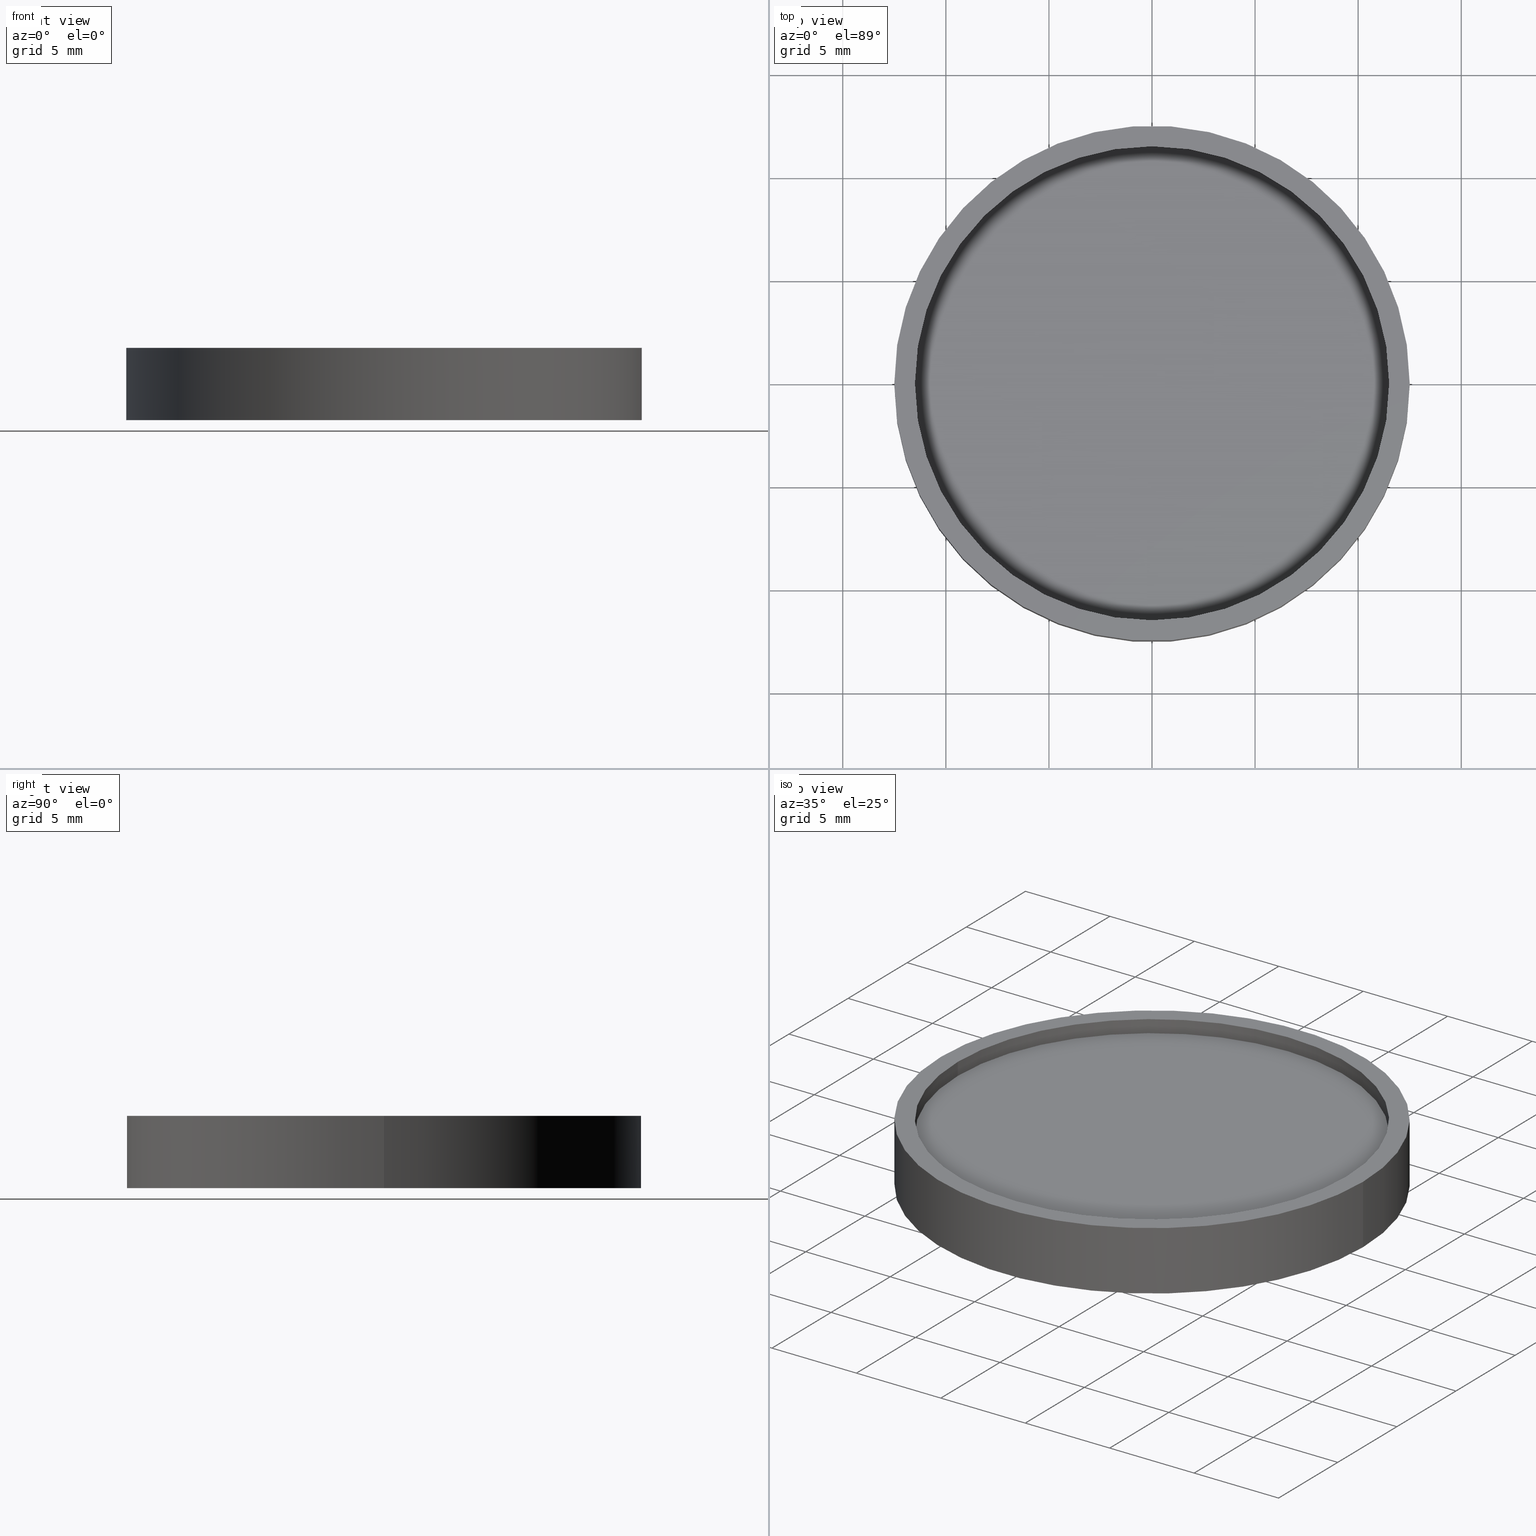
[diagram: canonical four-view strip — front | top / right | iso, engineering-drawing reading convention]
A machine part, canonical four-view strip (front | top / right | iso — engineering-drawing reading convention). The complete STEP part file that produces these views, byte-faithful:
ISO-10303-21;
HEADER;
FILE_DESCRIPTION (( 'STEP AP214' ),
    '1' );
FILE_NAME ('GNIF-045-460-D25.STEP',
    '2024-08-13T06:41:22',
    ( 'Windows User' ),
    ( 'P R C' ),
    'SwSTEP 2.0',
    'SolidWorks 2022',
    '' );
FILE_SCHEMA (( 'AUTOMOTIVE_DESIGN' ));
ENDSEC;

DATA;
#1 = CONICAL_SURFACE ( 'NONE', #335, 11.50000000000000000, 0.7853981633974471688 ) ;
#2 = FILL_AREA_STYLE ('',( #329 ) ) ;
#3 = DIRECTION ( 'NONE',  ( 1.000000000000000000, 0.000000000000000000, 0.000000000000000000 ) ) ;
#4 = AXIS2_PLACEMENT_3D ( 'NONE', #110, #103, #242 ) ;
#5 = DIRECTION ( 'NONE',  ( -1.000000000000000000, 0.000000000000000000, 0.000000000000000000 ) ) ;
#6 = STYLED_ITEM ( 'NONE', ( #398 ), #101 ) ;
#7 = DIRECTION ( 'NONE',  ( -0.7071067811865467956, 0.000000000000000000, -0.7071067811865483499 ) ) ;
#8 = CARTESIAN_POINT ( 'NONE',  ( 0.000000000000000000, 0.000000000000000000, 3.500000000000000000 ) ) ;
#9 = MECHANICAL_DESIGN_GEOMETRIC_PRESENTATION_REPRESENTATION (  '', ( #240 ), #364 ) ;
#10 = SURFACE_STYLE_FILL_AREA ( #80 ) ;
#11 = DIRECTION ( 'NONE',  ( 0.000000000000000000, 0.000000000000000000, 1.000000000000000000 ) ) ;
#12 = UNCERTAINTY_MEASURE_WITH_UNIT (LENGTH_MEASURE( 1.000000000000000082E-05 ), #216, 'distance_accuracy_value', 'NONE');
#13 =( NAMED_UNIT ( * ) PLANE_ANGLE_UNIT ( ) SI_UNIT ( $, .RADIAN. ) );
#14 = AXIS2_PLACEMENT_3D ( 'NONE', #336, #81, #271 ) ;
#15 = DIRECTION ( 'NONE',  ( 0.000000000000000000, 0.000000000000000000, -1.000000000000000000 ) ) ;
#16 =( LENGTH_UNIT ( ) NAMED_UNIT ( * ) SI_UNIT ( .MILLI., .METRE. ) );
#17 = ORIENTED_EDGE ( 'NONE', *, *, #130, .T. ) ;
#18 = PRESENTATION_STYLE_ASSIGNMENT (( #408 ) ) ;
#19 =( GEOMETRIC_REPRESENTATION_CONTEXT ( 3 ) GLOBAL_UNCERTAINTY_ASSIGNED_CONTEXT ( ( #140 ) ) GLOBAL_UNIT_ASSIGNED_CONTEXT ( ( #16, #184, #241 ) ) REPRESENTATION_CONTEXT ( 'NONE', 'WORKASPACE' ) );
#20 = FILL_AREA_STYLE_COLOUR ( '', #128 ) ;
#21 = VERTEX_POINT ( 'NONE', #152 ) ;
#22 = CARTESIAN_POINT ( 'NONE',  ( 0.000000000000000000, 0.000000000000000000, 0.000000000000000000 ) ) ;
#23 = ADVANCED_FACE ( 'NONE', ( #373 ), #158, .T. ) ;
#24 = DIRECTION ( 'NONE',  ( 0.000000000000000000, 0.000000000000000000, 1.000000000000000000 ) ) ;
#25 = ORIENTED_EDGE ( 'NONE', *, *, #32, .F. ) ;
#26 =( NAMED_UNIT ( * ) SI_UNIT ( $, .STERADIAN. ) SOLID_ANGLE_UNIT ( ) );
#27 = SURFACE_SIDE_STYLE ('',( #236 ) ) ;
#28 = ORIENTED_EDGE ( 'NONE', *, *, #362, .T. ) ;
#29 = COLOUR_RGB ( '',0.2235294117647058654, 0.2235294117647058654, 0.2235294117647058654 ) ;
#30 = DIRECTION ( 'NONE',  ( 1.000000000000000000, 0.000000000000000000, 0.000000000000000000 ) ) ;
#31 = SURFACE_SIDE_STYLE ('',( #59 ) ) ;
#32 = EDGE_CURVE ( 'NONE', #252, #227, #368, .T. ) ;
#33 = PRODUCT_DEFINITION_FORMATION_WITH_SPECIFIED_SOURCE ( '�κ�', '', #346, .NOT_KNOWN. ) ;
#34 =( NAMED_UNIT ( * ) PLANE_ANGLE_UNIT ( ) SI_UNIT ( $, .RADIAN. ) );
#35 = COLOUR_RGB ( '',0.2235294117647058654, 0.2235294117647058654, 0.2235294117647058654 ) ;
#36 = CIRCLE ( 'NONE', #383, 11.50000000000000000 ) ;
#37 = CARTESIAN_POINT ( 'NONE',  ( -12.50000000000000000, 0.000000000000000000, 3.500000000000000000 ) ) ;
#38 = FACE_BOUND ( 'NONE', #154, .T. ) ;
#39 =( NAMED_UNIT ( * ) PLANE_ANGLE_UNIT ( ) SI_UNIT ( $, .RADIAN. ) );
#40 = PLANE ( 'NONE',  #414 ) ;
#41 = FACE_OUTER_BOUND ( 'NONE', #384, .T. ) ;
#42 = EDGE_LOOP ( 'NONE', ( #95, #411, #282, #221 ) ) ;
#43 = CARTESIAN_POINT ( 'NONE',  ( 11.50000000000000000, 1.408343819019456176E-15, 0.7500000000000093259 ) ) ;
#44 = UNCERTAINTY_MEASURE_WITH_UNIT (LENGTH_MEASURE( 1.000000000000000082E-05 ), #410, 'distance_accuracy_value', 'NONE');
#45 = VECTOR ( 'NONE', #7, 1000.000000000000000 ) ;
#46 =( LENGTH_UNIT ( ) NAMED_UNIT ( * ) SI_UNIT ( .MILLI., .METRE. ) );
#47 = FACE_OUTER_BOUND ( 'NONE', #42, .T. ) ;
#48 = FILL_AREA_STYLE ('',( #276 ) ) ;
#49 =( GEOMETRIC_REPRESENTATION_CONTEXT ( 3 ) GLOBAL_UNCERTAINTY_ASSIGNED_CONTEXT ( ( #44 ) ) GLOBAL_UNIT_ASSIGNED_CONTEXT ( ( #410, #235, #344 ) ) REPRESENTATION_CONTEXT ( 'NONE', 'WORKASPACE' ) );
#50 = STYLED_ITEM ( 'NONE', ( #18 ), #219 ) ;
#51 =( NAMED_UNIT ( * ) PLANE_ANGLE_UNIT ( ) SI_UNIT ( $, .RADIAN. ) );
#52 = DIRECTION ( 'NONE',  ( -0.000000000000000000, -0.000000000000000000, -1.000000000000000000 ) ) ;
#53 = DIRECTION ( 'NONE',  ( 0.000000000000000000, 0.000000000000000000, 1.000000000000000000 ) ) ;
#54 = PRESENTATION_LAYER_ASSIGNMENT (  '', '', ( #400 ) ) ;
#55 = VECTOR ( 'NONE', #316, 1000.000000000000000 ) ;
#56 = ORIENTED_EDGE ( 'NONE', *, *, #32, .T. ) ;
#57 = CARTESIAN_POINT ( 'NONE',  ( 12.50000000000000000, 1.530808498934191521E-15, 0.000000000000000000 ) ) ;
#58 = ORIENTED_EDGE ( 'NONE', *, *, #362, .F. ) ;
#59 = SURFACE_STYLE_FILL_AREA ( #284 ) ;
#60 = ORIENTED_EDGE ( 'NONE', *, *, #62, .T. ) ;
#61 = DIRECTION ( 'NONE',  ( 0.000000000000000000, 0.000000000000000000, 1.000000000000000000 ) ) ;
#62 = EDGE_CURVE ( 'NONE', #227, #225, #193, .T. ) ;
#63 = AXIS2_PLACEMENT_3D ( 'NONE', #245, #11, #270 ) ;
#64 = STYLED_ITEM ( 'NONE', ( #239 ), #256 ) ;
#65 = CARTESIAN_POINT ( 'NONE',  ( -12.50000000000000000, 0.000000000000000000, 0.000000000000000000 ) ) ;
#66 =( NAMED_UNIT ( * ) PLANE_ANGLE_UNIT ( ) SI_UNIT ( $, .RADIAN. ) );
#67 = EDGE_CURVE ( 'NONE', #165, #225, #250, .T. ) ;
#68 = AXIS2_PLACEMENT_3D ( 'NONE', #406, #300, #210 ) ;
#69 = DIRECTION ( 'NONE',  ( -0.000000000000000000, -0.000000000000000000, 1.000000000000000000 ) ) ;
#70 = COLOUR_RGB ( '',0.2235294117647058654, 0.2235294117647058654, 0.2235294117647058654 ) ;
#71 = DIRECTION ( 'NONE',  ( -0.000000000000000000, -0.000000000000000000, -1.000000000000000000 ) ) ;
#72 = EDGE_CURVE ( 'NONE', #225, #165, #174, .T. ) ;
#73 = CIRCLE ( 'NONE', #387, 11.50000000000000000 ) ;
#74 = DIRECTION ( 'NONE',  ( 1.000000000000000000, 0.000000000000000000, 0.000000000000000000 ) ) ;
#75 = MECHANICAL_DESIGN_GEOMETRIC_PRESENTATION_REPRESENTATION (  '', ( #400 ), #91 ) ;
#76 = COLOUR_RGB ( '',0.2235294117647058654, 0.2235294117647058654, 0.2235294117647058654 ) ;
#77 = CARTESIAN_POINT ( 'NONE',  ( 0.000000000000000000, 0.000000000000000000, 0.7500000000000000000 ) ) ;
#78 = CARTESIAN_POINT ( 'NONE',  ( 0.000000000000000000, 0.000000000000000000, 0.000000000000000000 ) ) ;
#79 = CARTESIAN_POINT ( 'NONE',  ( 12.50000000000000000, 1.530808498934191521E-15, 3.500000000000000000 ) ) ;
#80 = FILL_AREA_STYLE ('',( #340 ) ) ;
#81 = DIRECTION ( 'NONE',  ( 0.000000000000000000, 0.000000000000000000, 1.000000000000000000 ) ) ;
#82 = COLOUR_RGB ( '',1.000000000000000000, 1.000000000000000000, 1.000000000000000000 ) ;
#83 =( GEOMETRIC_REPRESENTATION_CONTEXT ( 3 ) GLOBAL_UNCERTAINTY_ASSIGNED_CONTEXT ( ( #104 ) ) GLOBAL_UNIT_ASSIGNED_CONTEXT ( ( #197, #88, #226 ) ) REPRESENTATION_CONTEXT ( 'NONE', 'WORKASPACE' ) );
#84 = SURFACE_STYLE_USAGE ( .BOTH. , #246 ) ;
#85 = ORIENTED_EDGE ( 'NONE', *, *, #399, .T. ) ;
#86 = SURFACE_SIDE_STYLE ('',( #111 ) ) ;
#87 = ORIENTED_EDGE ( 'NONE', *, *, #347, .T. ) ;
#88 =( NAMED_UNIT ( * ) PLANE_ANGLE_UNIT ( ) SI_UNIT ( $, .RADIAN. ) );
#89 = VERTEX_POINT ( 'NONE', #151 ) ;
#90 = SURFACE_STYLE_USAGE ( .BOTH. , #31 ) ;
#91 =( GEOMETRIC_REPRESENTATION_CONTEXT ( 3 ) GLOBAL_UNCERTAINTY_ASSIGNED_CONTEXT ( ( #338 ) ) GLOBAL_UNIT_ASSIGNED_CONTEXT ( ( #46, #39, #306 ) ) REPRESENTATION_CONTEXT ( 'NONE', 'WORKASPACE' ) );
#92 = COLOUR_RGB ( '',0.2235294117647058654, 0.2235294117647058654, 0.2235294117647058654 ) ;
#93 = VERTEX_POINT ( 'NONE', #396 ) ;
#94 = DIRECTION ( 'NONE',  ( -1.000000000000000000, 0.000000000000000000, 0.000000000000000000 ) ) ;
#95 = ORIENTED_EDGE ( 'NONE', *, *, #230, .F. ) ;
#96 = CIRCLE ( 'NONE', #132, 11.50000000000000000 ) ;
#97 = CARTESIAN_POINT ( 'NONE',  ( 11.50000000000000000, 1.454268073987482448E-15, 0.7500000000000000000 ) ) ;
#98 = SURFACE_SIDE_STYLE ('',( #129 ) ) ;
#99 = STYLED_ITEM ( 'NONE', ( #294 ), #224 ) ;
#100 = FILL_AREA_STYLE_COLOUR ( '', #361 ) ;
#101 = ADVANCED_FACE ( 'NONE', ( #41 ), #1, .F. ) ;
#102 = CARTESIAN_POINT ( 'NONE',  ( 11.50000000000000000, 0.000000000000000000, 2.750000000000000000 ) ) ;
#103 = DIRECTION ( 'NONE',  ( 0.000000000000000000, 0.000000000000000000, 1.000000000000000000 ) ) ;
#104 = UNCERTAINTY_MEASURE_WITH_UNIT (LENGTH_MEASURE( 1.000000000000000082E-05 ), #197, 'distance_accuracy_value', 'NONE');
#105 =( NAMED_UNIT ( * ) SI_UNIT ( $, .STERADIAN. ) SOLID_ANGLE_UNIT ( ) );
#106 = DIRECTION ( 'NONE',  ( 1.000000000000000000, 0.000000000000000000, 0.000000000000000000 ) ) ;
#107 = FILL_AREA_STYLE_COLOUR ( '', #288 ) ;
#108 = CARTESIAN_POINT ( 'NONE',  ( 0.000000000000000000, 0.000000000000000000, 0.7500000000000093259 ) ) ;
#109 = FILL_AREA_STYLE ('',( #20 ) ) ;
#110 = CARTESIAN_POINT ( 'NONE',  ( 0.000000000000000000, 0.000000000000000000, 2.750000000000000000 ) ) ;
#111 = SURFACE_STYLE_FILL_AREA ( #48 ) ;
#112 = VECTOR ( 'NONE', #71, 1000.000000000000000 ) ;
#113 = PRESENTATION_STYLE_ASSIGNMENT (( #213 ) ) ;
#114 = MECHANICAL_DESIGN_GEOMETRIC_PRESENTATION_REPRESENTATION (  '', ( #298 ), #265 ) ;
#115 = ORIENTED_EDGE ( 'NONE', *, *, #330, .T. ) ;
#116 = FILL_AREA_STYLE ('',( #156 ) ) ;
#117 = EDGE_LOOP ( 'NONE', ( #352, #167 ) ) ;
#118 = CYLINDRICAL_SURFACE ( 'NONE', #258, 11.50000000000000000 ) ;
#119 = VERTEX_POINT ( 'NONE', #403 ) ;
#120 =( LENGTH_UNIT ( ) NAMED_UNIT ( * ) SI_UNIT ( .MILLI., .METRE. ) );
#121 = PRESENTATION_LAYER_ASSIGNMENT (  '', '', ( #99 ) ) ;
#122 = ORIENTED_EDGE ( 'NONE', *, *, #72, .F. ) ;
#123 = SURFACE_STYLE_FILL_AREA ( #249 ) ;
#124 = STYLED_ITEM ( 'NONE', ( #375 ), #327 ) ;
#125 = ORIENTED_EDGE ( 'NONE', *, *, #146, .F. ) ;
#126 = FILL_AREA_STYLE ('',( #418 ) ) ;
#127 = VECTOR ( 'NONE', #397, 1000.000000000000000 ) ;
#128 = COLOUR_RGB ( '',0.2235294117647058654, 0.2235294117647058654, 0.2235294117647058654 ) ;
#129 = SURFACE_STYLE_FILL_AREA ( #172 ) ;
#130 = EDGE_CURVE ( 'NONE', #354, #89, #389, .T. ) ;
#131 = CYLINDRICAL_SURFACE ( 'NONE', #238, 12.50000000000000000 ) ;
#132 = AXIS2_PLACEMENT_3D ( 'NONE', #136, #268, #404 ) ;
#133 = ADVANCED_FACE ( 'NONE', ( #243, #220 ), #251, .T. ) ;
#134 = PRESENTATION_LAYER_ASSIGNMENT (  '', '', ( #6 ) ) ;
#135 = SURFACE_STYLE_FILL_AREA ( #2 ) ;
#136 = CARTESIAN_POINT ( 'NONE',  ( 0.000000000000000000, 0.000000000000000000, 0.7500000000000000000 ) ) ;
#137 = DIRECTION ( 'NONE',  ( 0.000000000000000000, 0.000000000000000000, 1.000000000000000000 ) ) ;
#138 = CIRCLE ( 'NONE', #223, 11.50000000000000000 ) ;
#139 = LINE ( 'NONE', #79, #112 ) ;
#140 = UNCERTAINTY_MEASURE_WITH_UNIT (LENGTH_MEASURE( 1.000000000000000082E-05 ), #16, 'distance_accuracy_value', 'NONE');
#141 = DIRECTION ( 'NONE',  ( 0.000000000000000000, 0.000000000000000000, 1.000000000000000000 ) ) ;
#142 = CARTESIAN_POINT ( 'NONE',  ( 0.000000000000000000, 0.000000000000000000, 3.500000000000000000 ) ) ;
#143 = CARTESIAN_POINT ( 'NONE',  ( 0.000000000000000000, 0.000000000000000000, 0.7500000000000000000 ) ) ;
#144 =( NAMED_UNIT ( * ) SI_UNIT ( $, .STERADIAN. ) SOLID_ANGLE_UNIT ( ) );
#145 = AXIS2_PLACEMENT_3D ( 'NONE', #317, #319, #164 ) ;
#146 = EDGE_CURVE ( 'NONE', #119, #343, #36, .T. ) ;
#147 = ORIENTED_EDGE ( 'NONE', *, *, #283, .F. ) ;
#148 = LINE ( 'NONE', #176, #127 ) ;
#149 = DIRECTION ( 'NONE',  ( 1.000000000000000000, 0.000000000000000000, 0.000000000000000000 ) ) ;
#150 = FILL_AREA_STYLE ('',( #107 ) ) ;
#151 = CARTESIAN_POINT ( 'NONE',  ( -12.25000000000000711, 0.000000000000000000, 0.000000000000000000 ) ) ;
#152 = CARTESIAN_POINT ( 'NONE',  ( -11.50000000000000000, 0.000000000000000000, 0.7500000000000000000 ) ) ;
#153 = ADVANCED_FACE ( 'NONE', ( #38, #233 ), #229, .F. ) ;
#154 = EDGE_LOOP ( 'NONE', ( #377, #17 ) ) ;
#155 = AXIS2_PLACEMENT_3D ( 'NONE', #365, #371, #106 ) ;
#156 = FILL_AREA_STYLE_COLOUR ( '', #35 ) ;
#157 = MECHANICAL_DESIGN_GEOMETRIC_PRESENTATION_REPRESENTATION (  '', ( #6 ), #280 ) ;
#158 = CYLINDRICAL_SURFACE ( 'NONE', #353, 12.50000000000000000 ) ;
#159 = ORIENTED_EDGE ( 'NONE', *, *, #67, .T. ) ;
#160 = CARTESIAN_POINT ( 'NONE',  ( 0.000000000000000000, 0.000000000000000000, 2.750000000000000000 ) ) ;
#161 = CARTESIAN_POINT ( 'NONE',  ( -12.50000000000000000, 0.000000000000000000, 3.500000000000000000 ) ) ;
#162 = EDGE_LOOP ( 'NONE', ( #122, #355 ) ) ;
#163 = DIRECTION ( 'NONE',  ( 0.000000000000000000, 0.000000000000000000, 1.000000000000000000 ) ) ;
#164 = DIRECTION ( 'NONE',  ( 1.000000000000000000, 0.000000000000000000, -0.000000000000000000 ) ) ;
#165 = VERTEX_POINT ( 'NONE', #57 ) ;
#166 = STYLED_ITEM ( 'NONE', ( #208 ), #290 ) ;
#167 = ORIENTED_EDGE ( 'NONE', *, *, #211, .T. ) ;
#168 = DIRECTION ( 'NONE',  ( 1.000000000000000000, 0.000000000000000000, 0.000000000000000000 ) ) ;
#169 = MECHANICAL_DESIGN_GEOMETRIC_PRESENTATION_REPRESENTATION (  '', ( #124 ), #49 ) ;
#170 =( GEOMETRIC_REPRESENTATION_CONTEXT ( 3 ) GLOBAL_UNCERTAINTY_ASSIGNED_CONTEXT ( ( #274 ) ) GLOBAL_UNIT_ASSIGNED_CONTEXT ( ( #388, #66, #360 ) ) REPRESENTATION_CONTEXT ( 'NONE', 'WORKASPACE' ) );
#171 = LINE ( 'NONE', #392, #200 ) ;
#172 = FILL_AREA_STYLE ('',( #100 ) ) ;
#173 = CIRCLE ( 'NONE', #248, 12.25000000000000711 ) ;
#174 = CIRCLE ( 'NONE', #14, 12.50000000000000000 ) ;
#175 = CARTESIAN_POINT ( 'NONE',  ( 12.25000000000000711, 1.500192328955508523E-15, 0.000000000000000000 ) ) ;
#176 = CARTESIAN_POINT ( 'NONE',  ( 11.50000000000000000, 0.000000000000000000, 2.750000000000000000 ) ) ;
#177 = DIRECTION ( 'NONE',  ( -1.000000000000000000, 0.000000000000000000, 0.000000000000000000 ) ) ;
#178 = DIRECTION ( 'NONE',  ( -1.000000000000000000, 0.000000000000000000, 0.000000000000000000 ) ) ;
#179 = EDGE_CURVE ( 'NONE', #227, #252, #186, .T. ) ;
#180 =( GEOMETRIC_REPRESENTATION_CONTEXT ( 3 ) GLOBAL_UNCERTAINTY_ASSIGNED_CONTEXT ( ( #215 ) ) GLOBAL_UNIT_ASSIGNED_CONTEXT ( ( #202, #34, #205 ) ) REPRESENTATION_CONTEXT ( 'NONE', 'WORKASPACE' ) );
#181 = DIRECTION ( 'NONE',  ( 0.7071067811865467956, 8.659560562354925463E-17, -0.7071067811865483499 ) ) ;
#182 = SURFACE_SIDE_STYLE ('',( #10 ) ) ;
#183 = SURFACE_STYLE_FILL_AREA ( #109 ) ;
#184 =( NAMED_UNIT ( * ) PLANE_ANGLE_UNIT ( ) SI_UNIT ( $, .RADIAN. ) );
#185 = ADVANCED_FACE ( 'NONE', ( #189 ), #267, .F. ) ;
#186 = CIRCLE ( 'NONE', #292, 12.50000000000000000 ) ;
#187 = CARTESIAN_POINT ( 'NONE',  ( 0.000000000000000000, 0.000000000000000000, 3.500000000000000000 ) ) ;
#188 = ORIENTED_EDGE ( 'NONE', *, *, #130, .F. ) ;
#189 = FACE_OUTER_BOUND ( 'NONE', #314, .T. ) ;
#190 = ORIENTED_EDGE ( 'NONE', *, *, #62, .F. ) ;
#191 = APPLICATION_PROTOCOL_DEFINITION ( 'draft international standard', 'automotive_design', 1998, #359 ) ;
#192 = PRESENTATION_LAYER_ASSIGNMENT (  '', '', ( #298 ) ) ;
#193 = LINE ( 'NONE', #161, #55 ) ;
#194 = ORIENTED_EDGE ( 'NONE', *, *, #419, .T. ) ;
#195 =( NAMED_UNIT ( * ) PLANE_ANGLE_UNIT ( ) SI_UNIT ( $, .RADIAN. ) );
#196 = EDGE_LOOP ( 'NONE', ( #25, #115, #159, #190 ) ) ;
#197 =( LENGTH_UNIT ( ) NAMED_UNIT ( * ) SI_UNIT ( .MILLI., .METRE. ) );
#198 = ORIENTED_EDGE ( 'NONE', *, *, #179, .F. ) ;
#199 = CARTESIAN_POINT ( 'NONE',  ( 0.000000000000000000, 0.000000000000000000, 0.000000000000000000 ) ) ;
#200 = VECTOR ( 'NONE', #206, 1000.000000000000000 ) ;
#201 = AXIS2_PLACEMENT_3D ( 'NONE', #78, #305, #149 ) ;
#202 =( LENGTH_UNIT ( ) NAMED_UNIT ( * ) SI_UNIT ( .MILLI., .METRE. ) );
#203 = AXIS2_PLACEMENT_3D ( 'NONE', #259, #356, #94 ) ;
#204 = CARTESIAN_POINT ( 'NONE',  ( 0.000000000000000000, 0.000000000000000000, 2.750000000000000000 ) ) ;
#205 =( NAMED_UNIT ( * ) SI_UNIT ( $, .STERADIAN. ) SOLID_ANGLE_UNIT ( ) );
#206 = DIRECTION ( 'NONE',  ( -0.000000000000000000, -0.000000000000000000, 1.000000000000000000 ) ) ;
#207 = CARTESIAN_POINT ( 'NONE',  ( -11.50000000000000000, 1.408343819019456176E-15, 3.500000000000000000 ) ) ;
#208 = PRESENTATION_STYLE_ASSIGNMENT (( #310 ) ) ;
#209 = UNCERTAINTY_MEASURE_WITH_UNIT (LENGTH_MEASURE( 1.000000000000000082E-05 ), #120, 'distance_accuracy_value', 'NONE');
#210 = DIRECTION ( 'NONE',  ( 1.000000000000000000, 0.000000000000000000, -0.000000000000000000 ) ) ;
#211 = EDGE_CURVE ( 'NONE', #93, #287, #138, .T. ) ;
#212 = DIRECTION ( 'NONE',  ( -1.000000000000000000, 0.000000000000000000, 0.000000000000000000 ) ) ;
#213 = SURFACE_STYLE_USAGE ( .BOTH. , #86 ) ;
#214 = LINE ( 'NONE', #43, #312 ) ;
#215 = UNCERTAINTY_MEASURE_WITH_UNIT (LENGTH_MEASURE( 1.000000000000000082E-05 ), #202, 'distance_accuracy_value', 'NONE');
#216 =( LENGTH_UNIT ( ) NAMED_UNIT ( * ) SI_UNIT ( .MILLI., .METRE. ) );
#217 = PRESENTATION_LAYER_ASSIGNMENT (  '', '', ( #64 ) ) ;
#218 = DIRECTION ( 'NONE',  ( 0.000000000000000000, 0.000000000000000000, -1.000000000000000000 ) ) ;
#219 = ADVANCED_FACE ( 'NONE', ( #291 ), #118, .F. ) ;
#220 = FACE_OUTER_BOUND ( 'NONE', #381, .T. ) ;
#221 = ORIENTED_EDGE ( 'NONE', *, *, #146, .T. ) ;
#222 = FILL_AREA_STYLE_COLOUR ( '', #29 ) ;
#223 = AXIS2_PLACEMENT_3D ( 'NONE', #160, #61, #168 ) ;
#224 = MANIFOLD_SOLID_BREP ( '����1', #315 ) ;
#225 = VERTEX_POINT ( 'NONE', #65 ) ;
#226 =( NAMED_UNIT ( * ) SI_UNIT ( $, .STERADIAN. ) SOLID_ANGLE_UNIT ( ) );
#227 = VERTEX_POINT ( 'NONE', #37 ) ;
#228 = SURFACE_STYLE_USAGE ( .BOTH. , #232 ) ;
#229 = PLANE ( 'NONE',  #145 ) ;
#230 = EDGE_CURVE ( 'NONE', #93, #343, #171, .T. ) ;
#231 = VERTEX_POINT ( 'NONE', #97 ) ;
#232 = SURFACE_SIDE_STYLE ('',( #123 ) ) ;
#233 = FACE_OUTER_BOUND ( 'NONE', #162, .T. ) ;
#234 = ORIENTED_EDGE ( 'NONE', *, *, #412, .F. ) ;
#235 =( NAMED_UNIT ( * ) PLANE_ANGLE_UNIT ( ) SI_UNIT ( $, .RADIAN. ) );
#236 = SURFACE_STYLE_FILL_AREA ( #116 ) ;
#237 = FACE_OUTER_BOUND ( 'NONE', #196, .T. ) ;
#238 = AXIS2_PLACEMENT_3D ( 'NONE', #363, #296, #5 ) ;
#239 = PRESENTATION_STYLE_ASSIGNMENT (( #391 ) ) ;
#240 = STYLED_ITEM ( 'NONE', ( #289 ), #185 ) ;
#241 =( NAMED_UNIT ( * ) SI_UNIT ( $, .STERADIAN. ) SOLID_ANGLE_UNIT ( ) );
#242 = DIRECTION ( 'NONE',  ( 1.000000000000000000, 0.000000000000000000, -0.000000000000000000 ) ) ;
#243 = FACE_BOUND ( 'NONE', #257, .T. ) ;
#244 = MECHANICAL_DESIGN_GEOMETRIC_PRESENTATION_REPRESENTATION (  '', ( #272 ), #83 ) ;
#245 = CARTESIAN_POINT ( 'NONE',  ( 0.000000000000000000, 0.000000000000000000, 3.500000000000000000 ) ) ;
#246 = SURFACE_SIDE_STYLE ('',( #183 ) ) ;
#247 = DIRECTION ( 'NONE',  ( 0.000000000000000000, 0.000000000000000000, 1.000000000000000000 ) ) ;
#248 = AXIS2_PLACEMENT_3D ( 'NONE', #275, #247, #369 ) ;
#249 = FILL_AREA_STYLE ('',( #253 ) ) ;
#250 = CIRCLE ( 'NONE', #401, 12.50000000000000000 ) ;
#251 = PLANE ( 'NONE',  #68 ) ;
#252 = VERTEX_POINT ( 'NONE', #420 ) ;
#253 = FILL_AREA_STYLE_COLOUR ( '', #261 ) ;
#254 = SURFACE_STYLE_USAGE ( .BOTH. , #27 ) ;
#255 = ORIENTED_EDGE ( 'NONE', *, *, #419, .F. ) ;
#256 = ADVANCED_FACE ( 'NONE', ( #237 ), #131, .T. ) ;
#257 = EDGE_LOOP ( 'NONE', ( #125, #380 ) ) ;
#258 = AXIS2_PLACEMENT_3D ( 'NONE', #204, #69, #3 ) ;
#259 = CARTESIAN_POINT ( 'NONE',  ( 0.000000000000000000, 0.000000000000000000, 0.7500000000000093259 ) ) ;
#260 = EDGE_LOOP ( 'NONE', ( #28, #194 ) ) ;
#261 = COLOUR_RGB ( '',1.000000000000000000, 1.000000000000000000, 1.000000000000000000 ) ;
#262 = ADVANCED_FACE ( 'NONE', ( #337 ), #40, .T. ) ;
#263 = SURFACE_STYLE_FILL_AREA ( #126 ) ;
#264 = CIRCLE ( 'NONE', #63, 11.50000000000000000 ) ;
#265 =( GEOMETRIC_REPRESENTATION_CONTEXT ( 3 ) GLOBAL_UNCERTAINTY_ASSIGNED_CONTEXT ( ( #302 ) ) GLOBAL_UNIT_ASSIGNED_CONTEXT ( ( #339, #334, #144 ) ) REPRESENTATION_CONTEXT ( 'NONE', 'WORKASPACE' ) );
#266 = SURFACE_STYLE_USAGE ( .BOTH. , #326 ) ;
#267 = CONICAL_SURFACE ( 'NONE', #203, 11.50000000000000000, 0.7853981633974471688 ) ;
#268 = DIRECTION ( 'NONE',  ( 0.000000000000000000, 0.000000000000000000, -1.000000000000000000 ) ) ;
#269 = DIRECTION ( 'NONE',  ( 1.000000000000000000, 0.000000000000000000, 0.000000000000000000 ) ) ;
#270 = DIRECTION ( 'NONE',  ( 1.000000000000000000, 0.000000000000000000, 0.000000000000000000 ) ) ;
#271 = DIRECTION ( 'NONE',  ( 1.000000000000000000, 0.000000000000000000, 0.000000000000000000 ) ) ;
#272 = STYLED_ITEM ( 'NONE', ( #385 ), #153 ) ;
#273 = CYLINDRICAL_SURFACE ( 'NONE', #155, 11.50000000000000000 ) ;
#274 = UNCERTAINTY_MEASURE_WITH_UNIT (LENGTH_MEASURE( 1.000000000000000082E-05 ), #388, 'distance_accuracy_value', 'NONE');
#275 = CARTESIAN_POINT ( 'NONE',  ( 0.000000000000000000, 0.000000000000000000, 0.000000000000000000 ) ) ;
#276 = FILL_AREA_STYLE_COLOUR ( '', #76 ) ;
#277 =( GEOMETRIC_REPRESENTATION_CONTEXT ( 3 ) GLOBAL_UNCERTAINTY_ASSIGNED_CONTEXT ( ( #209 ) ) GLOBAL_UNIT_ASSIGNED_CONTEXT ( ( #120, #195, #26 ) ) REPRESENTATION_CONTEXT ( 'NONE', 'WORKASPACE' ) );
#278 = ORIENTED_EDGE ( 'NONE', *, *, #330, .F. ) ;
#279 = PRODUCT_CONTEXT ( 'NONE', #332, 'mechanical' ) ;
#280 =( GEOMETRIC_REPRESENTATION_CONTEXT ( 3 ) GLOBAL_UNCERTAINTY_ASSIGNED_CONTEXT ( ( #12 ) ) GLOBAL_UNIT_ASSIGNED_CONTEXT ( ( #216, #13, #105 ) ) REPRESENTATION_CONTEXT ( 'NONE', 'WORKASPACE' ) );
#281 = CARTESIAN_POINT ( 'NONE',  ( 0.000000000000000000, 0.000000000000000000, 3.500000000000000000 ) ) ;
#282 = ORIENTED_EDGE ( 'NONE', *, *, #405, .T. ) ;
#283 = EDGE_CURVE ( 'NONE', #21, #89, #301, .T. ) ;
#284 = FILL_AREA_STYLE ('',( #222 ) ) ;
#285 = ORIENTED_EDGE ( 'NONE', *, *, #283, .T. ) ;
#286 =( LENGTH_UNIT ( ) NAMED_UNIT ( * ) SI_UNIT ( .MILLI., .METRE. ) );
#287 = VERTEX_POINT ( 'NONE', #102 ) ;
#288 = COLOUR_RGB ( '',0.2235294117647058654, 0.2235294117647058654, 0.2235294117647058654 ) ;
#289 = PRESENTATION_STYLE_ASSIGNMENT (( #254 ) ) ;
#290 = ADVANCED_FACE ( 'NONE', ( #47 ), #273, .F. ) ;
#291 = FACE_OUTER_BOUND ( 'NONE', #374, .T. ) ;
#292 = AXIS2_PLACEMENT_3D ( 'NONE', #281, #24, #322 ) ;
#293 =( LENGTH_UNIT ( ) NAMED_UNIT ( * ) SI_UNIT ( .MILLI., .METRE. ) );
#294 = PRESENTATION_STYLE_ASSIGNMENT (( #266 ) ) ;
#295 = PRODUCT_DEFINITION_SHAPE ( 'NONE', 'NONE',  #313 ) ;
#296 = DIRECTION ( 'NONE',  ( -0.000000000000000000, -0.000000000000000000, -1.000000000000000000 ) ) ;
#297 = AXIS2_PLACEMENT_3D ( 'NONE', #77, #372, #212 ) ;
#298 = STYLED_ITEM ( 'NONE', ( #113 ), #133 ) ;
#299 = FACE_OUTER_BOUND ( 'NONE', #117, .T. ) ;
#300 = DIRECTION ( 'NONE',  ( 0.000000000000000000, 0.000000000000000000, 1.000000000000000000 ) ) ;
#301 = LINE ( 'NONE', #331, #45 ) ;
#302 = UNCERTAINTY_MEASURE_WITH_UNIT (LENGTH_MEASURE( 1.000000000000000082E-05 ), #339, 'distance_accuracy_value', 'NONE');
#303 = DIRECTION ( 'NONE',  ( 1.000000000000000000, 0.000000000000000000, 0.000000000000000000 ) ) ;
#304 = SURFACE_SIDE_STYLE ('',( #342 ) ) ;
#305 = DIRECTION ( 'NONE',  ( 0.000000000000000000, 0.000000000000000000, 1.000000000000000000 ) ) ;
#306 =( NAMED_UNIT ( * ) SI_UNIT ( $, .STERADIAN. ) SOLID_ANGLE_UNIT ( ) );
#307 = CARTESIAN_POINT ( 'NONE',  ( 0.000000000000000000, 0.000000000000000000, 2.750000000000000000 ) ) ;
#308 = UNCERTAINTY_MEASURE_WITH_UNIT (LENGTH_MEASURE( 1.000000000000000082E-05 ), #286, 'distance_accuracy_value', 'NONE');
#309 = SURFACE_STYLE_USAGE ( .BOTH. , #182 ) ;
#310 = SURFACE_STYLE_USAGE ( .BOTH. , #304 ) ;
#311 = ORIENTED_EDGE ( 'NONE', *, *, #211, .F. ) ;
#312 = VECTOR ( 'NONE', #181, 1000.000000000000000 ) ;
#313 = PRODUCT_DEFINITION ( 'δ֪', '', #33, #394 ) ;
#314 = EDGE_LOOP ( 'NONE', ( #255, #85, #234, #147 ) ) ;
#315 = CLOSED_SHELL ( 'NONE', ( #185, #219, #256, #23, #133, #153, #290, #370, #262, #101 ) ) ;
#316 = DIRECTION ( 'NONE',  ( -0.000000000000000000, -0.000000000000000000, -1.000000000000000000 ) ) ;
#317 = CARTESIAN_POINT ( 'NONE',  ( 0.000000000000000000, 0.000000000000000000, 0.000000000000000000 ) ) ;
#318 = ORIENTED_EDGE ( 'NONE', *, *, #405, .F. ) ;
#319 = DIRECTION ( 'NONE',  ( 0.000000000000000000, 0.000000000000000000, 1.000000000000000000 ) ) ;
#320 = CIRCLE ( 'NONE', #297, 11.50000000000000000 ) ;
#321 = MECHANICAL_DESIGN_GEOMETRIC_PRESENTATION_REPRESENTATION (  '', ( #99 ), #393 ) ;
#322 = DIRECTION ( 'NONE',  ( 1.000000000000000000, 0.000000000000000000, 0.000000000000000000 ) ) ;
#323 = PRESENTATION_LAYER_ASSIGNMENT (  '', '', ( #272 ) ) ;
#324 = PRESENTATION_LAYER_ASSIGNMENT (  '', '', ( #124 ) ) ;
#325 = PRESENTATION_LAYER_ASSIGNMENT (  '', '', ( #240 ) ) ;
#326 = SURFACE_SIDE_STYLE ('',( #135 ) ) ;
#327 = ADVANCED_BREP_SHAPE_REPRESENTATION ( 'GNIF-045-460-D25', ( #224, #417 ), #277 ) ;
#328 =( NAMED_UNIT ( * ) SI_UNIT ( $, .STERADIAN. ) SOLID_ANGLE_UNIT ( ) );
#329 = FILL_AREA_STYLE_COLOUR ( '', #82 ) ;
#330 = EDGE_CURVE ( 'NONE', #252, #165, #139, .T. ) ;
#331 = CARTESIAN_POINT ( 'NONE',  ( -11.50000000000000000, 0.000000000000000000, 0.7500000000000093259 ) ) ;
#332 = APPLICATION_CONTEXT ( 'automotive_design' ) ;
#333 = MECHANICAL_DESIGN_GEOMETRIC_PRESENTATION_REPRESENTATION (  '', ( #166 ), #19 ) ;
#334 =( NAMED_UNIT ( * ) PLANE_ANGLE_UNIT ( ) SI_UNIT ( $, .RADIAN. ) );
#335 = AXIS2_PLACEMENT_3D ( 'NONE', #108, #15, #177 ) ;
#336 = CARTESIAN_POINT ( 'NONE',  ( 0.000000000000000000, 0.000000000000000000, 0.000000000000000000 ) ) ;
#337 = FACE_OUTER_BOUND ( 'NONE', #260, .T. ) ;
#338 = UNCERTAINTY_MEASURE_WITH_UNIT (LENGTH_MEASURE( 1.000000000000000082E-05 ), #46, 'distance_accuracy_value', 'NONE');
#339 =( LENGTH_UNIT ( ) NAMED_UNIT ( * ) SI_UNIT ( .MILLI., .METRE. ) );
#340 = FILL_AREA_STYLE_COLOUR ( '', #92 ) ;
#341 = MECHANICAL_DESIGN_GEOMETRIC_PRESENTATION_REPRESENTATION (  '', ( #64 ), #180 ) ;
#342 = SURFACE_STYLE_FILL_AREA ( #150 ) ;
#343 = VERTEX_POINT ( 'NONE', #207 ) ;
#344 =( NAMED_UNIT ( * ) SI_UNIT ( $, .STERADIAN. ) SOLID_ANGLE_UNIT ( ) );
#345 = PRESENTATION_LAYER_ASSIGNMENT (  '', '', ( #50 ) ) ;
#346 = PRODUCT ( 'GNIF-045-460-D25', 'GNIF-045-460-D25', '', ( #279 ) ) ;
#347 = EDGE_CURVE ( 'NONE', #343, #119, #264, .T. ) ;
#348 = ORIENTED_EDGE ( 'NONE', *, *, #72, .T. ) ;
#349 = SHAPE_DEFINITION_REPRESENTATION ( #295, #327 ) ;
#350 =( NAMED_UNIT ( * ) SI_UNIT ( $, .STERADIAN. ) SOLID_ANGLE_UNIT ( ) );
#351 = DIRECTION ( 'NONE',  ( 1.000000000000000000, 0.000000000000000000, 0.000000000000000000 ) ) ;
#352 = ORIENTED_EDGE ( 'NONE', *, *, #390, .T. ) ;
#353 = AXIS2_PLACEMENT_3D ( 'NONE', #187, #52, #178 ) ;
#354 = VERTEX_POINT ( 'NONE', #175 ) ;
#355 = ORIENTED_EDGE ( 'NONE', *, *, #67, .F. ) ;
#356 = DIRECTION ( 'NONE',  ( 0.000000000000000000, 0.000000000000000000, -1.000000000000000000 ) ) ;
#357 =( NAMED_UNIT ( * ) PLANE_ANGLE_UNIT ( ) SI_UNIT ( $, .RADIAN. ) );
#358 = AXIS2_PLACEMENT_3D ( 'NONE', #142, #53, #351 ) ;
#359 = APPLICATION_CONTEXT ( 'automotive_design' ) ;
#360 =( NAMED_UNIT ( * ) SI_UNIT ( $, .STERADIAN. ) SOLID_ANGLE_UNIT ( ) );
#361 = COLOUR_RGB ( '',0.2235294117647058654, 0.2235294117647058654, 0.2235294117647058654 ) ;
#362 = EDGE_CURVE ( 'NONE', #21, #231, #96, .T. ) ;
#363 = CARTESIAN_POINT ( 'NONE',  ( 0.000000000000000000, 0.000000000000000000, 3.500000000000000000 ) ) ;
#364 =( GEOMETRIC_REPRESENTATION_CONTEXT ( 3 ) GLOBAL_UNCERTAINTY_ASSIGNED_CONTEXT ( ( #308 ) ) GLOBAL_UNIT_ASSIGNED_CONTEXT ( ( #286, #51, #350 ) ) REPRESENTATION_CONTEXT ( 'NONE', 'WORKASPACE' ) );
#365 = CARTESIAN_POINT ( 'NONE',  ( 0.000000000000000000, 0.000000000000000000, 2.750000000000000000 ) ) ;
#366 = DIRECTION ( 'NONE',  ( 0.000000000000000000, 0.000000000000000000, 1.000000000000000000 ) ) ;
#367 = UNCERTAINTY_MEASURE_WITH_UNIT (LENGTH_MEASURE( 1.000000000000000082E-05 ), #293, 'distance_accuracy_value', 'NONE');
#368 = CIRCLE ( 'NONE', #358, 12.50000000000000000 ) ;
#369 = DIRECTION ( 'NONE',  ( 1.000000000000000000, 0.000000000000000000, 0.000000000000000000 ) ) ;
#370 = ADVANCED_FACE ( 'NONE', ( #299 ), #395, .T. ) ;
#371 = DIRECTION ( 'NONE',  ( -0.000000000000000000, -0.000000000000000000, 1.000000000000000000 ) ) ;
#372 = DIRECTION ( 'NONE',  ( 0.000000000000000000, 0.000000000000000000, -1.000000000000000000 ) ) ;
#373 = FACE_OUTER_BOUND ( 'NONE', #416, .T. ) ;
#374 = EDGE_LOOP ( 'NONE', ( #311, #407, #87, #318 ) ) ;
#375 = PRESENTATION_STYLE_ASSIGNMENT (( #228 ) ) ;
#376 = PRODUCT_RELATED_PRODUCT_CATEGORY ( 'part', '', ( #346 ) ) ;
#377 = ORIENTED_EDGE ( 'NONE', *, *, #412, .T. ) ;
#378 = MECHANICAL_DESIGN_GEOMETRIC_PRESENTATION_REPRESENTATION (  '', ( #50 ), #170 ) ;
#379 = PRESENTATION_STYLE_ASSIGNMENT (( #84 ) ) ;
#380 = ORIENTED_EDGE ( 'NONE', *, *, #347, .F. ) ;
#381 = EDGE_LOOP ( 'NONE', ( #413, #56 ) ) ;
#382 = PRESENTATION_LAYER_ASSIGNMENT (  '', '', ( #166 ) ) ;
#383 = AXIS2_PLACEMENT_3D ( 'NONE', #8, #137, #269 ) ;
#384 = EDGE_LOOP ( 'NONE', ( #409, #58, #285, #188 ) ) ;
#385 = PRESENTATION_STYLE_ASSIGNMENT (( #90 ) ) ;
#386 = SURFACE_SIDE_STYLE ('',( #263 ) ) ;
#387 = AXIS2_PLACEMENT_3D ( 'NONE', #307, #366, #74 ) ;
#388 =( LENGTH_UNIT ( ) NAMED_UNIT ( * ) SI_UNIT ( .MILLI., .METRE. ) );
#389 = CIRCLE ( 'NONE', #201, 12.25000000000000711 ) ;
#390 = EDGE_CURVE ( 'NONE', #287, #93, #73, .T. ) ;
#391 = SURFACE_STYLE_USAGE ( .BOTH. , #98 ) ;
#392 = CARTESIAN_POINT ( 'NONE',  ( -11.50000000000000000, 1.408343819019456176E-15, 2.750000000000000000 ) ) ;
#393 =( GEOMETRIC_REPRESENTATION_CONTEXT ( 3 ) GLOBAL_UNCERTAINTY_ASSIGNED_CONTEXT ( ( #367 ) ) GLOBAL_UNIT_ASSIGNED_CONTEXT ( ( #293, #357, #328 ) ) REPRESENTATION_CONTEXT ( 'NONE', 'WORKASPACE' ) );
#394 = PRODUCT_DEFINITION_CONTEXT ( 'detailed design', #359, 'design' ) ;
#395 = PLANE ( 'NONE',  #4 ) ;
#396 = CARTESIAN_POINT ( 'NONE',  ( -11.50000000000000000, 1.408343819019456176E-15, 2.750000000000000000 ) ) ;
#397 = DIRECTION ( 'NONE',  ( -0.000000000000000000, -0.000000000000000000, 1.000000000000000000 ) ) ;
#398 = PRESENTATION_STYLE_ASSIGNMENT (( #309 ) ) ;
#399 = EDGE_CURVE ( 'NONE', #231, #354, #214, .T. ) ;
#400 = STYLED_ITEM ( 'NONE', ( #379 ), #23 ) ;
#401 = AXIS2_PLACEMENT_3D ( 'NONE', #22, #141, #303 ) ;
#402 = DIRECTION ( 'NONE',  ( -1.000000000000000000, 0.000000000000000000, -0.000000000000000000 ) ) ;
#403 = CARTESIAN_POINT ( 'NONE',  ( 11.50000000000000000, 0.000000000000000000, 3.500000000000000000 ) ) ;
#404 = DIRECTION ( 'NONE',  ( -1.000000000000000000, 0.000000000000000000, 0.000000000000000000 ) ) ;
#405 = EDGE_CURVE ( 'NONE', #287, #119, #148, .T. ) ;
#406 = CARTESIAN_POINT ( 'NONE',  ( 0.000000000000000000, 0.000000000000000000, 3.500000000000000000 ) ) ;
#407 = ORIENTED_EDGE ( 'NONE', *, *, #230, .T. ) ;
#408 = SURFACE_STYLE_USAGE ( .BOTH. , #386 ) ;
#409 = ORIENTED_EDGE ( 'NONE', *, *, #399, .F. ) ;
#410 =( LENGTH_UNIT ( ) NAMED_UNIT ( * ) SI_UNIT ( .MILLI., .METRE. ) );
#411 = ORIENTED_EDGE ( 'NONE', *, *, #390, .F. ) ;
#412 = EDGE_CURVE ( 'NONE', #89, #354, #173, .T. ) ;
#413 = ORIENTED_EDGE ( 'NONE', *, *, #179, .T. ) ;
#414 = AXIS2_PLACEMENT_3D ( 'NONE', #143, #218, #402 ) ;
#415 = APPLICATION_PROTOCOL_DEFINITION ( 'draft international standard', 'automotive_design', 1998, #332 ) ;
#416 = EDGE_LOOP ( 'NONE', ( #278, #198, #60, #348 ) ) ;
#417 = AXIS2_PLACEMENT_3D ( 'NONE', #199, #163, #30 ) ;
#418 = FILL_AREA_STYLE_COLOUR ( '', #70 ) ;
#419 = EDGE_CURVE ( 'NONE', #231, #21, #320, .T. ) ;
#420 = CARTESIAN_POINT ( 'NONE',  ( 12.50000000000000000, 1.530808498934191521E-15, 3.500000000000000000 ) ) ;
ENDSEC;
END-ISO-10303-21;
